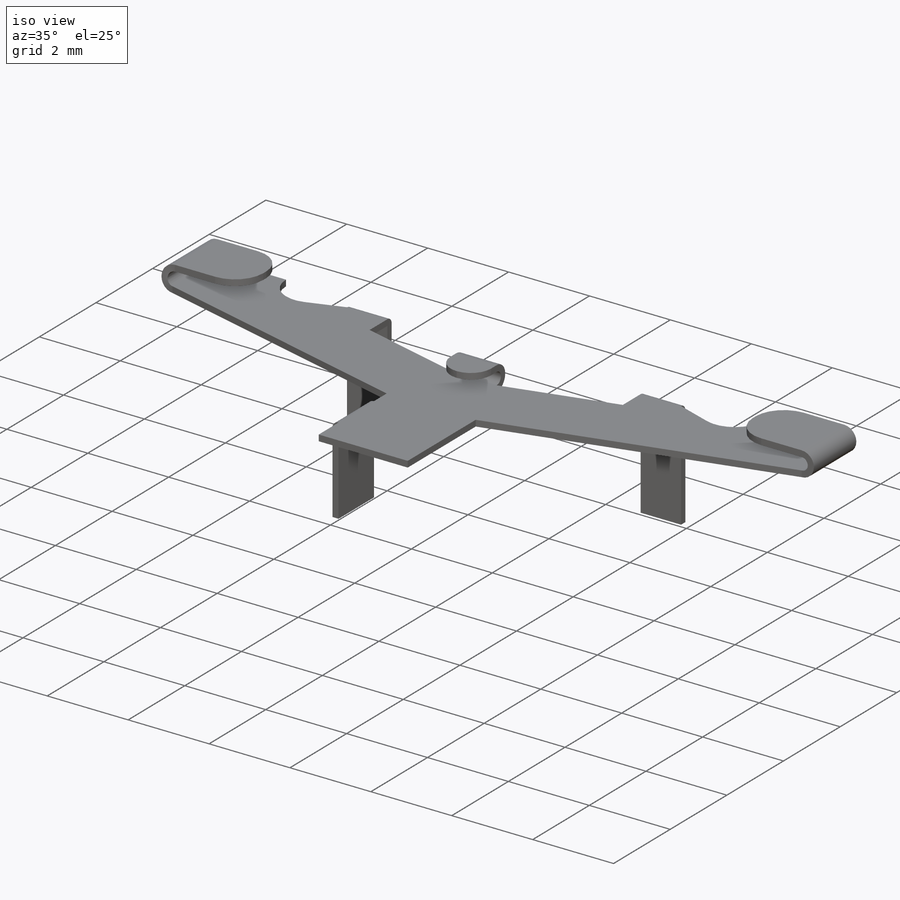
[diagram: iso view]
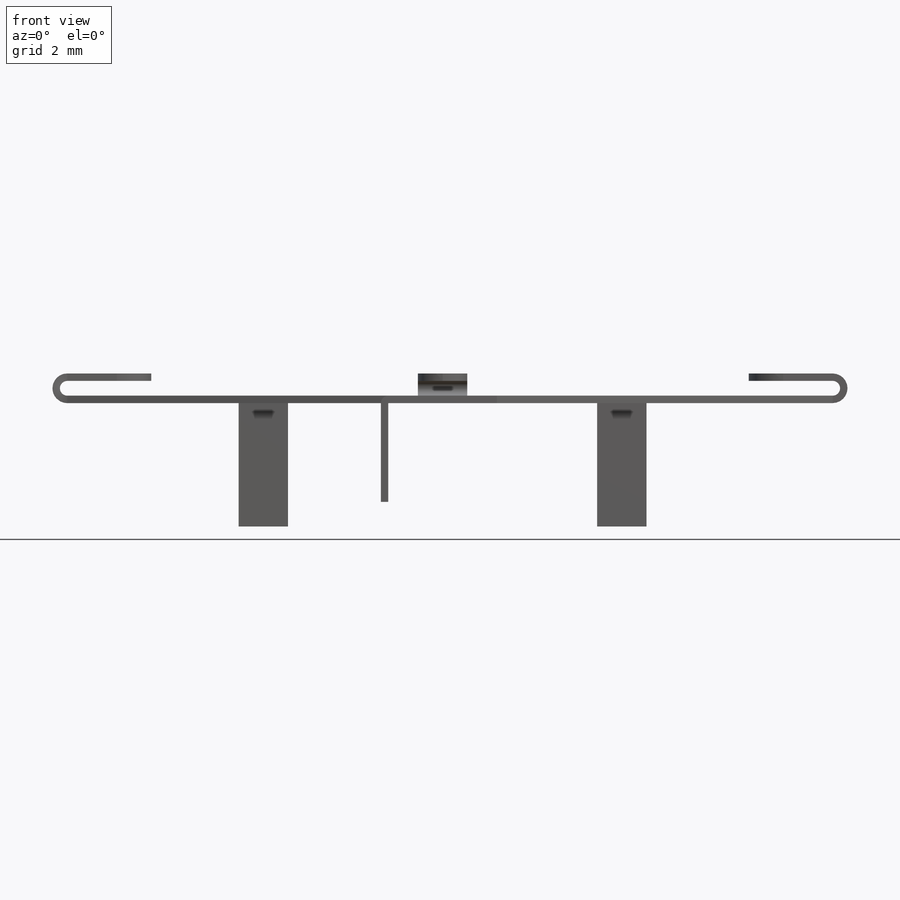
[diagram: front view]
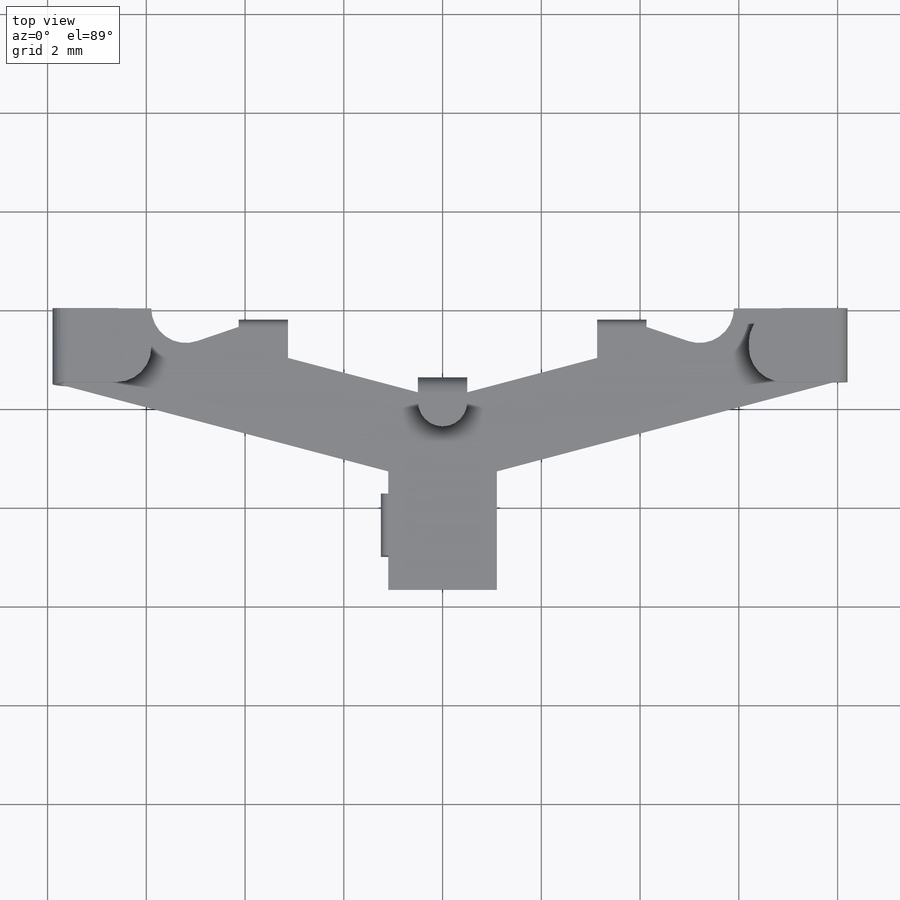
[diagram: top view]
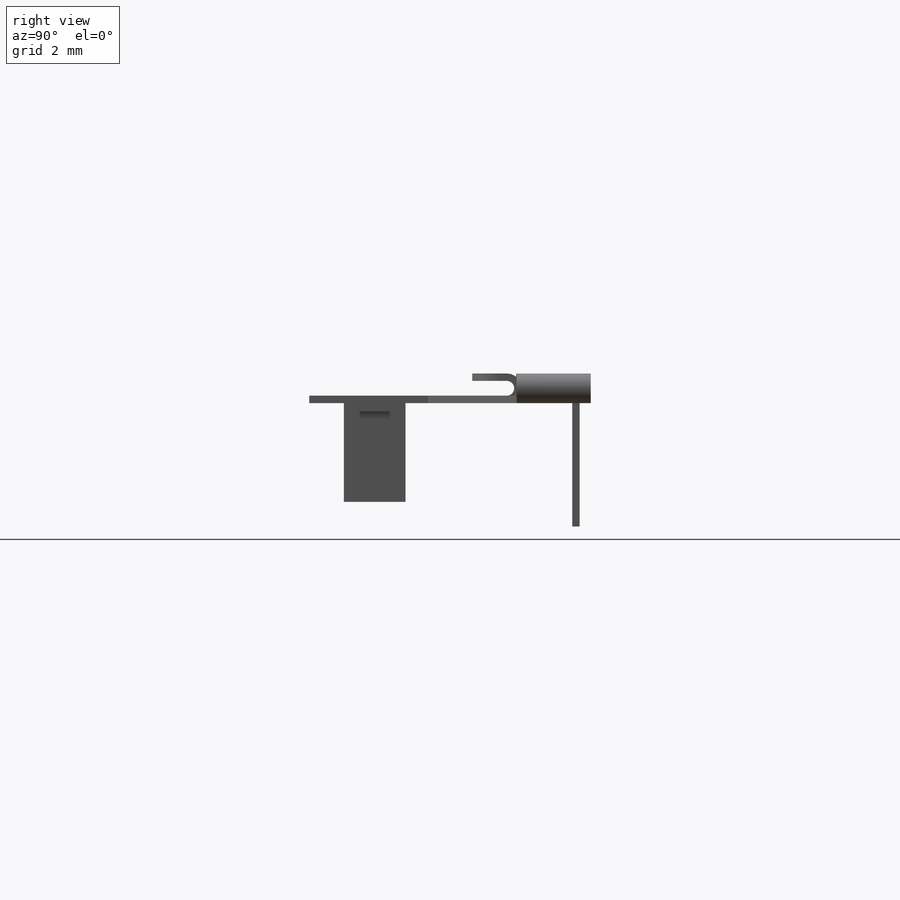
[diagram: right view]
SOLIDWORKS PART (.sldprt)
format: sldprt  version: not decoded by parser v0  size: 409,600 bytes
history: native  units: mm
features: sheet_metal_op x8, sketch x6, fillet x2, material x1 + 7 further entries (+12 scaffold rows collapsed; 1 parser-record rows omitted)
feature tree (37):
  scaffold x12  (default folders/planes/origin — collapsed)
  material  "Chrome Stainless Steel"
  sketch  "Sketch1"  dims[c1.D1=1.0mm c1.D6=0.75mm c1.D7=0.7mm c1.D21=0.7mm c1.D2=5.1mm c1.D3=5.1mm c1.D4=7.25mm c1.D5=3.625mm c1.D8=1.0mm c1.D9=3.13mm c1.D10=3.13mm c1.D11=0.375mm c1.D12=~1.435055mm c1.D13=~3.191764mm c2.D12=1.7mm c2.D13=1.0mm c2.D14=15.8mm c2.D15=1.7mm c2.D16=1.7mm c2.D17=1.5mm c2.D18=2.2mm c2.D19=~1.552351mm c2.D20=1.1mm c3.D19=~4.657442mm c3.D21=~3.157442mm c4.D19=4.0mm c4.D21=2.0mm]
  sheet_metal_op  "Sheet-Metal1"
  sheet_metal_op  "Base-Flange1"  Hem2=0
  sheet_metal_op  "HemBend2"  Hem3=0
  sheet_metal_op  "HemBend3"
  sketch  "Sketch7"
  sheet_metal_op  "EdgeBend1"
  sketch  "Sketch10"
  sheet_metal_op  "EdgeBend2"
  sketch  "Sketch16"  dims[D1=5.25mm D2=1.5mm D3=2.0mm]
  sheet_metal_op  "EdgeBend4"
  fillet  "Fillet1"  Radius=0.7mm
  fillet  "Fillet2"  Radius=0.5mm
  sketch  "Sketch19"  dims[D1=1.25mm D2=5.0mm]
  sheet_metal_op  "EdgeBend5"
  "Flat-Pattern1"
  sketch  "Bend-Lines1"
  parser-record x1  (decoder bookkeeping rows leaked as tree rows — omitted from the tree; the rows remain in map.json)
  "Flatten-<HemBend2>1"
  "Flatten-<HemBend3>1"
  "Flatten-<EdgeBend1>1"
  "Flatten-<EdgeBend2>1"
  "Flatten-<EdgeBend4>1"
  "Flatten-<EdgeBend5>1"
decode coverage: 7 of 16 modeling features carry decoded parameters; 7 rows unclassified (native names shown)
note: ~ marks probable driven/reference dimensions
note: suppression state not decoded; provenance and decode notes live in map.json
